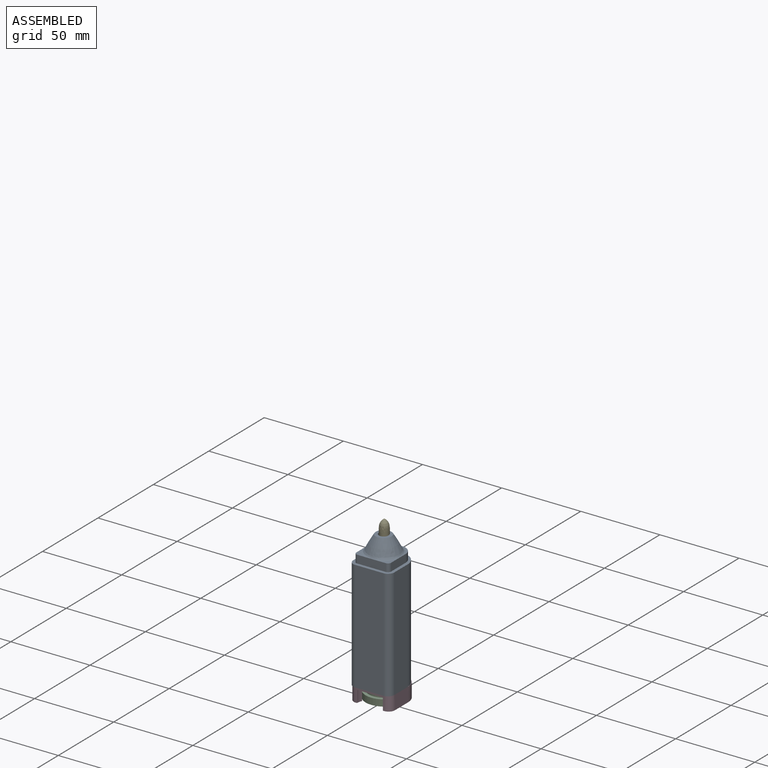
[diagram: assembled view]
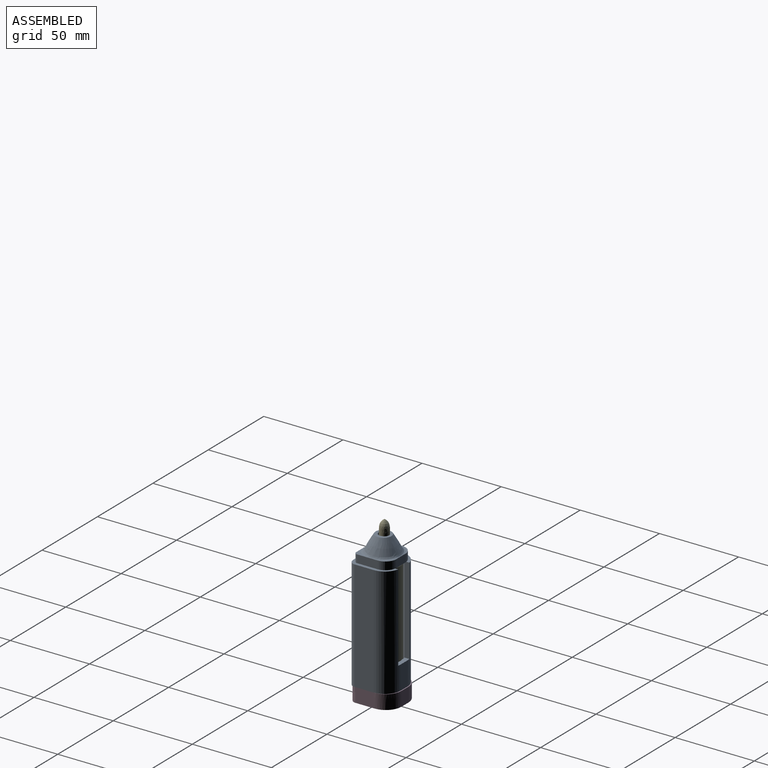
[diagram: assembled view, second angle]
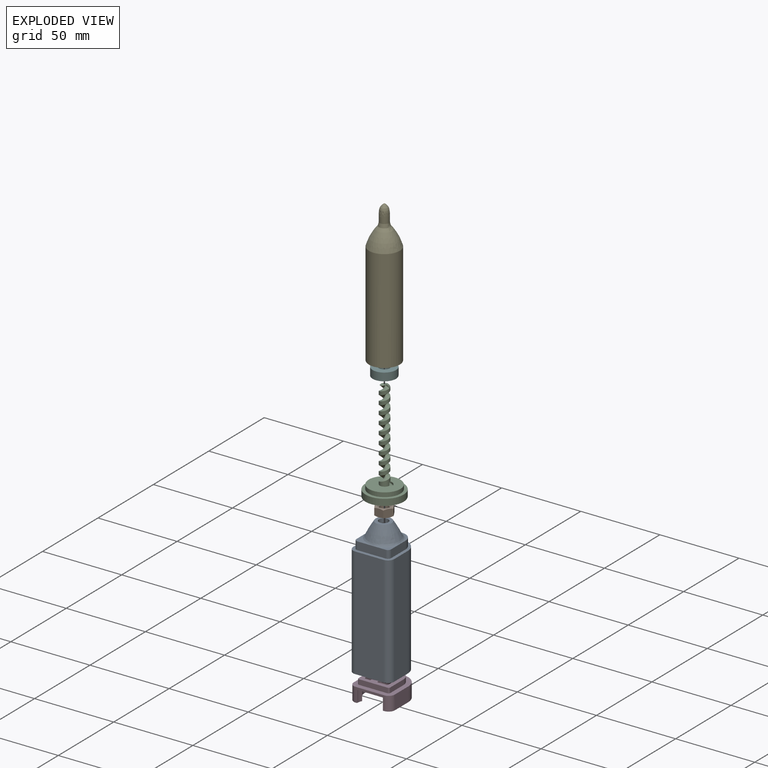
[diagram: exploded view]
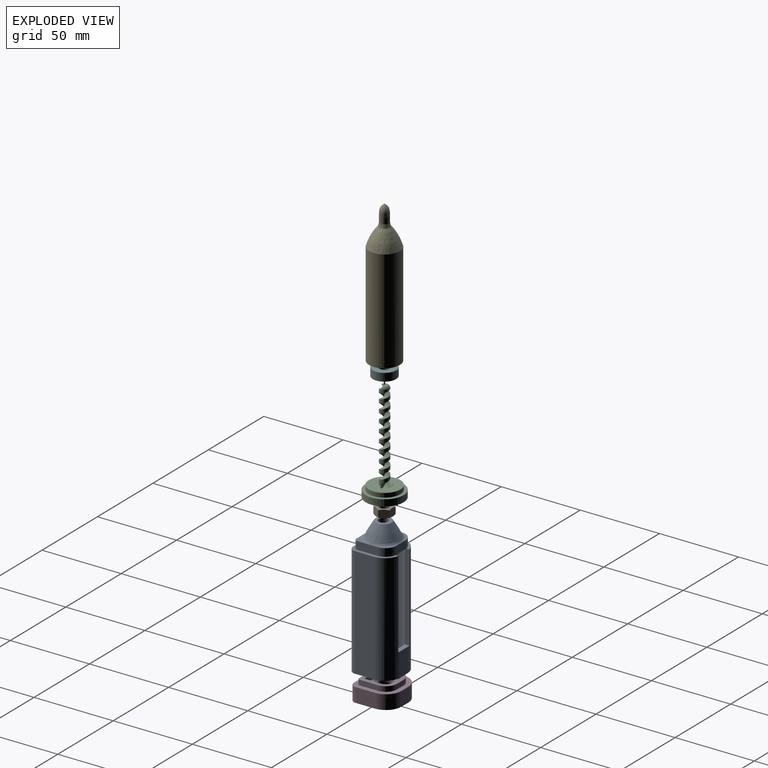
[diagram: exploded view, second angle]
ASSEMBLY  parts=6 mates=5
PART A: 60 faces, bbox 31x31x90 mm
  f0: plane 6.84x6.84mm, normal (0,0,1), area 15.8mm2, adj f35,f36,f37,f55
  f1: plane 6.85x6.85mm, normal (0,0,1), area 15.8mm2, adj f33,f34,f35,f51
  f2: plane 6.84x6.84mm, normal (0,0,1), area 6.1mm2, adj f32,f48
  f3: plane 16x16mm, normal (0,0,-1), area 64.9mm2, adj f25,f26,f27,f28,f29,f30,f31,f40
  f4: plane 6.85x6.85mm, normal (0,0,1), area 6.1mm2, adj f38,f56
  f5: cylinder r=10mm len=70mm, axis (0,0,-1), area 988.8mm2, adj f6,f9,f21,f22,f24,f59
  f6: plane 15x6mm, normal (0,1,0), area 90mm2, adj f5,f10,f22,f59
  f7: plane 15x6mm, normal (0,-1,0), area 90mm2, adj f8,f14,f22,f59
  f8: cylinder r=7mm len=70mm, axis (0,0,-1), area 658.1mm2, adj f7,f15,f22,f24,f41,f59
  f9: plane 70x12mm, normal (1,0,0), area 840mm2, adj f5,f20,f21,f59
  f10: cylinder r=10mm len=70mm, axis (0,0,-1), area 988.8mm2, adj f6,f11,f21,f22,f23,f59
  f11: plane 70x12mm, normal (-1,0,0), area 840mm2, adj f10,f12,f21,f59
  f12: cylinder r=4mm len=70mm, axis (0,0,-1), area 439.8mm2, adj f11,f13,f21,f59
  f13: plane 70x18mm, normal (0,-1,0), area 1260mm2, adj f12,f20,f21,f59
  f14: cylinder r=7mm len=70mm, axis (0,0,-1), area 658.1mm2, adj f7,f19,f22,f23,f41,f59
  f15: plane 70x12mm, normal (-1,0,0), area 840mm2, adj f8,f16,f41,f59
  f16: cylinder r=1mm len=70mm, axis (0,0,-1), area 110mm2, adj f15,f17,f41,f59
  f17: plane 70x18mm, normal (0,1,0), area 1260mm2, adj f16,f18,f41,f59
  f18: cylinder r=1mm len=70mm, axis (0,0,-1), area 110mm2, adj f17,f19,f41,f59
  f19: plane 70x12mm, normal (1,0,0), area 840mm2, adj f14,f18,f41,f59
  f20: cylinder r=4mm len=70mm, axis (0,0,-1), area 439.8mm2, adj f9,f13,f21,f59
  f21: plane 26x25.8mm, normal (0,0,1), area 145.2mm2, adj f5,f9,f10,f11,f12,f13,f20,f23
  f22: plane 10x3.29mm, normal (0,0,1), area 30.1mm2, adj f5,f6,f7,f8,f10,f14,f23,f24
  f23: plane 55x3.09mm, normal (1,0,0), area 169.9mm2, adj f10,f14,f21,f22,f41
  f24: plane 55x3.09mm, normal (-1,0,0), area 169.9mm2, adj f5,f8,f21,f22,f41
  f25: cylinder r=2mm len=5mm, axis (0,0,-1), area 15.7mm2, adj f3,f26,f40,f41
  f26: plane 12x5mm, normal (-1,0,0), area 60mm2, adj f3,f25,f27,f41
  f27: cylinder r=2mm len=5mm, axis (0,0,-1), area 15.7mm2, adj f3,f26,f28,f41
  f28: plane 12x5mm, normal (0,1,0), area 60mm2, adj f3,f27,f29,f41
  f29: cylinder r=2mm len=5mm, axis (0,0,-1), area 15.7mm2, adj f3,f28,f30,f41
  f30: plane 12x5mm, normal (1,0,0), area 60mm2, adj f3,f29,f31,f41
  f31: cylinder r=2mm len=5mm, axis (0,0,-1), area 15.7mm2, adj f3,f30,f40,f41
  f32: cylinder r=7mm len=7mm, axis (0,0,-1), area 55mm2, adj f2,f21,f33,f39,f41,f47,f50
  f33: plane 13.09x5.09mm, normal (-1,0,0), area 65mm2, adj f1,f21,f32,f34,f49
  f34: cylinder r=2mm len=5mm, axis (0,0,-1), area 15.7mm2, adj f1,f21,f33,f35
  f35: plane 18.08x5.08mm, normal (0,-1,0), area 90mm2, adj f0,f1,f21,f34,f36,f53
  f36: cylinder r=2mm len=5mm, axis (0,0,-1), area 15.7mm2, adj f0,f21,f35,f37
  f37: plane 13.07x5.07mm, normal (1,0,0), area 65mm2, adj f0,f21,f36,f38,f57
  f38: cylinder r=7mm len=7mm, axis (0,0,-1), area 55mm2, adj f4,f21,f37,f39,f41,f54,f58
  f39: plane 8.08x5.08mm, normal (0,1,0), area 40mm2, adj f32,f38,f41,f52
  f40: plane 12x5mm, normal (0,-1,0), area 60mm2, adj f3,f25,f31,f41
  f41: plane 21x20mm, normal (0,0,-1), area 136.3mm2, adj f8,f14,f15,f16,f17,f18,f19,f23
  f42: bspline ~21x21mm, area 487.1mm2, adj f43,f47,f48,f49,f50,f51,f52,f53
  f43: plane 10x10mm, normal (0,0,1), area 50.3mm2, adj f42,f46
  f44: offset ~26.47x26.47mm, area 309.5mm2, adj f3,f45
  f45: plane 7.24x7.24mm, normal (0,0,-1), area 12.8mm2, adj f44,f46
  f46: cylinder r=3mm len=6mm, axis (0,0,1), area 47.1mm2, adj f43,f45
  f47: bspline ~1.69x1.13mm, area 0.3mm2, adj f32,f42,f48,f49
  f48: bspline ~8.58x8.56mm, area 20.4mm2, adj f2,f42,f47,f50
  f49: bspline ~9.15x1.85mm, area 12.5mm2, adj f33,f42,f47,f51
  f50: bspline ~1.69x1.13mm, area 0.3mm2, adj f32,f42,f48,f52
  f51: bspline ~8.79x8.54mm, area 20.5mm2, adj f1,f42,f49,f53
  f52: bspline ~9.15x1.85mm, area 12.2mm2, adj f39,f42,f50,f54
  f53: bspline ~9.15x1.85mm, area 12.8mm2, adj f35,f42,f51,f55
  f54: bspline ~1.69x1.13mm, area 0.3mm2, adj f38,f42,f52,f56
  f55: bspline ~8.42x8.34mm, area 20.5mm2, adj f0,f42,f53,f57
  f56: bspline ~8.81x8.67mm, area 20.4mm2, adj f4,f42,f54,f58
  f57: bspline ~9.15x1.85mm, area 12.5mm2, adj f37,f42,f55,f58
  f58: bspline ~1.69x1.13mm, area 0.3mm2, adj f38,f42,f56,f57
  f59: plane 26x26mm, normal (0,0,-1), area 247.7mm2, adj f5,f6,f7,f8,f9,f10,f11,f12
PART B: 23 faces, bbox 12x5.5x12 mm
  f0: plane 10x10mm, normal (0,1,0), area 34.4mm2, adj f3,f5,f6,f9,f11,f13,f15
  f1: plane 10x10mm, normal (0,-1,0), area 34.4mm2, adj f4,f7,f8,f10,f12,f14,f16
  f2: cylinder r=2.75mm len=5.5mm, axis (0,-1,0), area 51.8mm2, adj f3,f4
  f3: cone r=3.75mm half-angle=45deg, axis (0,1,0), area 28.9mm2, adj f0,f2
  f4: cone r=2.75mm half-angle=45deg, axis (0,-1,0), area 28.9mm2, adj f1,f2
  f5: cone r=5mm half-angle=63.4deg, axis (0,-1,0), area 2.4mm2, adj f0,f17,f18
  f6: cone r=5mm half-angle=63.4deg, axis (0,-1,0), area 2.4mm2, adj f0,f17,f22
  f7: cone r=5mm half-angle=63.4deg, axis (0,1,0), area 2.4mm2, adj f1,f17,f18
  f8: cone r=5mm half-angle=63.4deg, axis (0,1,0), area 2.4mm2, adj f1,f17,f22
  f9: cone r=5mm half-angle=63.4deg, axis (0,-1,0), area 2.4mm2, adj f0,f18,f19
  f10: cone r=5mm half-angle=63.4deg, axis (0,1,0), area 2.4mm2, adj f1,f18,f19
  f11: cone r=5mm half-angle=63.4deg, axis (0,-1,0), area 2.4mm2, adj f0,f19,f20
  f12: cone r=5mm half-angle=63.4deg, axis (0,1,0), area 2.4mm2, adj f1,f19,f20
  f13: cone r=5mm half-angle=63.4deg, axis (0,-1,0), area 2.4mm2, adj f0,f20,f21
  f14: cone r=5mm half-angle=63.4deg, axis (0,1,0), area 2.4mm2, adj f1,f20,f21
  f15: cone r=5mm half-angle=63.4deg, axis (0,-1,0), area 2.4mm2, adj f0,f21,f22
  f16: cone r=5mm half-angle=63.4deg, axis (0,1,0), area 2.4mm2, adj f1,f21,f22
  f17: plane 5.46x5.46mm, normal (0.87,0,-0.5), area 27.3mm2, adj f5,f6,f7,f8,f18,f22
  f18: plane 6.24x5.47mm, normal (0,0,-1), area 27.3mm2, adj f5,f7,f9,f10,f17,f19
  f19: plane 5.46x5.46mm, normal (-0.87,0,-0.5), area 27.3mm2, adj f9,f10,f11,f12,f18,f20
  f20: plane 5.46x5.46mm, normal (-0.87,0,0.5), area 27.3mm2, adj f11,f12,f13,f14,f19,f21
  f21: plane 6.24x5.47mm, normal (0,0,1), area 27.3mm2, adj f13,f14,f15,f16,f20,f22
  f22: plane 5.46x5.46mm, normal (0.87,0,0.5), area 27.3mm2, adj f6,f8,f15,f16,f17,f21
PART C: 13 faces, bbox 24.4x24.4x67.2 mm
  f0: cylinder r=3mm len=55.3mm, axis (0,0,-1), area 404.1mm2, adj f1,f5,f6,f8,f12
  f1: plane 20.39x20.39mm, normal (0,0,-1), area 272mm2, adj f0,f3,f6,f7,f8
  f2: plane 2.04x2.04mm, normal (0,0,-1), area 3mm2, adj f4,f5,f12
  f3: cylinder r=10mm len=20mm, axis (0,0,-1), area 169.6mm2, adj f1,f11
  f4: plane 2.95x1.62mm, normal (0,1,0), area 2mm2, adj f2,f5,f8,f12
  f5: bspline ~60.37x9.72mm, area 392.7mm2, adj f0,f2,f4,f6,f8,f12
  f6: plane 4.75x4.28mm, normal (0,-1,0), area 8.5mm2, adj f0,f1,f5,f7,f8
  f7: bspline ~9.54x8.03mm, area 15.1mm2, adj f1,f6,f8
  f8: bspline ~59.4x9.54mm, area 386.1mm2, adj f0,f1,f4,f5,f6,f7,f12
  f9: cylinder r=12mm len=24mm, axis (0,0,-1), area 309.1mm2, adj f10,f11
  f10: plane 24x24mm, normal (0,0,1), area 452.4mm2, adj f9
  f11: plane 24x24mm, normal (0,0,-1), area 138.2mm2, adj f3,f9
  f12: torus R=1mm, axis (0,0,1), area 26.8mm2, adj f0,f2,f4,f5,f8
PART D: 49 faces, bbox 26x26x12.2 mm
  f0: plane 18x2.8mm, normal (0,-1,0), area 29.2mm2, adj f2,f3,f4,f5,f13,f20,f21,f41
  f1: cylinder r=12mm len=24mm, axis (0,0,1), area 446.7mm2, adj f2,f3,f41,f48
  f2: cylinder r=8.16mm len=7.5mm, axis (0,0,-1), area 27.3mm2, adj f0,f1,f5,f41,f48
  f3: cylinder r=8.16mm len=7.5mm, axis (0,0,-1), area 27.3mm2, adj f0,f1,f13,f41,f48
  f4: plane 26.04x26mm, normal (0,0,1), area 248.4mm2, adj f0,f7,f11,f17,f18,f19,f20,f21
  f5: plane 6.2x0.85mm, normal (0,-1,0), area 5.2mm2, adj f0,f2,f6,f48
  f6: cylinder r=4mm len=6.2mm, axis (0,0,-1), area 39mm2, adj f5,f7,f14,f21,f48
  f7: plane 12.59x9mm, normal (1,0,0), area 108mm2, adj f4,f6,f8,f14,f17,f21,f22,f48
  f8: cylinder r=10mm len=10mm, axis (0,0,-1), area 97.4mm2, adj f7,f9,f22,f48
  f9: plane 6.2x6mm, normal (0,1,0), area 37.2mm2, adj f8,f10,f18,f48
  f10: cylinder r=10mm len=10mm, axis (0,0,-1), area 97.4mm2, adj f9,f11,f15,f48
  f11: plane 12.59x9mm, normal (-1,0,0), area 108mm2, adj f4,f10,f12,f15,f16,f19,f20,f48
  f12: cylinder r=4mm len=6.2mm, axis (0,0,-1), area 39mm2, adj f11,f13,f16,f20,f48
  f13: plane 6.2x0.85mm, normal (0,-1,0), area 5.2mm2, adj f0,f3,f12,f48
  f14: plane 4x3.96mm, normal (0,0,-1), area 0.2mm2, adj f6,f7,f21
  f15: plane 10.59x10.02mm, normal (0,0,-1), area 0.2mm2, adj f10,f11,f19
  f16: plane 4x3.96mm, normal (0,0,-1), area 0.2mm2, adj f11,f12,f20
  f17: cylinder r=10mm len=10.59mm, axis (0,0,-1), area 45.7mm2, adj f4,f7,f18,f22
  f18: plane 6x2.8mm, normal (0,1,0), area 16.8mm2, adj f4,f9,f17,f19
  f19: cylinder r=10mm len=10.59mm, axis (0,0,-1), area 45.7mm2, adj f4,f11,f15,f18
  f20: cylinder r=4mm len=4mm, axis (0,0,-1), area 16.1mm2, adj f0,f4,f11,f12,f16
  f21: cylinder r=4mm len=4mm, axis (0,0,-1), area 16.1mm2, adj f0,f4,f6,f7,f14
  f22: plane 10.59x10.02mm, normal (0,0,-1), area 0.2mm2, adj f7,f8,f17
  f23: plane 6x3.2mm, normal (0,1,0), area 19.2mm2, adj f4,f24,f38,f39
  f24: cylinder r=7mm len=7mm, axis (0,0,-1), area 35.2mm2, adj f4,f23,f25,f39
  f25: plane 12x3.2mm, normal (-1,0,0), area 38.4mm2, adj f4,f24,f26,f39
  f26: cylinder r=1mm len=3.2mm, axis (0,0,-1), area 5mm2, adj f4,f25,f27,f39
  f27: plane 18x3.2mm, normal (0,-1,0), area 57.6mm2, adj f4,f26,f28,f39
  f28: cylinder r=1mm len=3.2mm, axis (0,0,-1), area 5mm2, adj f4,f27,f29,f39
  f29: plane 12x3.2mm, normal (1,0,0), area 38.4mm2, adj f4,f28,f38,f39
  f30: cylinder r=4.5mm len=4.5mm, axis (0,0,-1), area 20mm2, adj f31,f37,f39,f40
  f31: plane 6x3.2mm, normal (0,-1,0), area 19.2mm2, adj f30,f32,f39,f40
  f32: cylinder r=4.5mm len=4.5mm, axis (0,0,-1), area 20mm2, adj f31,f33,f39,f40
  f33: plane 10.39x3.2mm, normal (-1,0,0), area 33.2mm2, adj f32,f34,f39,f40
  f34: cylinder r=1mm len=3.2mm, axis (0,0,-1), area 5mm2, adj f33,f35,f39,f40
  f35: plane 13x3.2mm, normal (0,1,0), area 41.6mm2, adj f34,f36,f39,f40
  f36: cylinder r=1mm len=3.2mm, axis (0,0,-1), area 5mm2, adj f35,f37,f39,f40
  f37: plane 10.39x3.2mm, normal (1,0,0), area 33.2mm2, adj f30,f36,f39,f40
  f38: cylinder r=7mm len=7mm, axis (0,0,-1), area 35.2mm2, adj f4,f23,f29,f39
  f39: plane 20x20mm, normal (0,0,1), area 162mm2, adj f23,f24,f25,f26,f27,f28,f29,f30
  f40: plane 15x15mm, normal (0,0,1), area 178.1mm2, adj f30,f31,f32,f33,f34,f35,f36,f37
  f41: plane 25x24mm, normal (0,0,-1), area 444.2mm2, adj f0,f1,f2,f3,f43
  f42: cylinder r=3.5mm len=7mm, axis (0,0,1), area 5.9mm2, adj f40,f45
  f43: cylinder r=3.5mm len=7mm, axis (0,0,1), area 24.2mm2, adj f41,f44
  f44: plane 24x21.48mm, normal (0,0,1), area 339.7mm2, adj f43,f46,f47
  f45: plane 24x21.48mm, normal (0,0,-1), area 339.7mm2, adj f42,f46,f47
  f46: cylinder r=8.16mm len=14.71mm, axis (0,0,-1), area 2.4mm2, adj f44,f45,f47
  f47: cylinder r=12mm len=24mm, axis (0,0,1), area 7.7mm2, adj f44,f45,f46
  f48: plane 26x26mm, normal (0,0,-1), area 143.5mm2, adj f1,f2,f3,f5,f6,f7,f8,f9
PART E: 12 faces, bbox 110.6x80.7x142.3 mm
  f0: cylinder r=2.88mm len=5.75mm, axis (0,0,1), area 37.9mm2, adj f5,f7
  f1: cylinder r=9.75mm len=65mm, axis (0,0,-1), area 3982mm2, adj f2,f3
  f2: plane 19.5x19.5mm, normal (0,0,-1), area 133.5mm2, adj f1,f4
  f3: bspline ~19.49x19.48mm, area 533.6mm2, adj f1,f11
  f4: cylinder r=7.25mm len=64.6mm, axis (0,0,-1), area 2942.8mm2, adj f2,f6
  f5: plane 59.78x59.78mm, normal (0,0,-1), area 13.2mm2, adj f0,f6
  f6: offset ~62.76x32.46mm, area 647.3mm2, adj f4,f5
  f7: plane 5.75x5.75mm, normal (0,0,-1), area 26mm2, adj f0
  f8: cylinder r=2.88mm len=5.75mm, axis (0,0,-1), area 65mm2, adj f9,f11
  f9: plane 5.79x5.79mm, normal (0,0,-1), area 0.3mm2, adj f8,f10
  f10: revolved ~6.99x5.79mm, area 107.4mm2, adj f9
  f11: bspline ~9.75x9.74mm, area 103.8mm2, adj f3,f8
PART F: 4 faces, bbox 14.8x14.8x5 mm
  f0: cylinder r=7.38mm len=14.75mm, axis (0,0,-1), area 231.7mm2, adj f1,f2
  f1: plane 14.75x14.75mm, normal (0,0,1), area 132.4mm2, adj f0,f3
  f2: plane 14.75x14.75mm, normal (0,0,-1), area 132.4mm2, adj f0,f3
  f3: cylinder r=3.5mm len=7mm, axis (0,0,-1), area 110mm2, adj f1,f2
PLACE A t=(0,0.8,10)mm
PLACE B rot(axis=(1,0,0),90deg) t=(0,1.39,4.09)mm
PLACE C rot(axis=(-1,0,0),180deg) t=(0.06,1.53,31.21)mm
PLACE D t=(0,1.39,-6.91)mm
PLACE E t=(0,1.39,4.09)mm
PLACE F t=(0,1.39,4.09)mm
MATE slider D.f4 <-> A.f59  axis (0,0,1) through (13,-2.2,0.09)mm
MATE fastened F.f0 <-> B.f5  axis (0,0,-1) through (0,1.39,4.09)mm
MATE fastened F.f0 <-> E.f1  axis (0,0,-1) through (0,1.39,4.09)mm
MATE fastened B.f2 <-> D.f42  axis (0,0,-1) through (0,1.39,0.09)mm
MATE fastened D.f42 <-> C.f1  axis (0,0,-1) through (0,1.39,-1.41)mm
